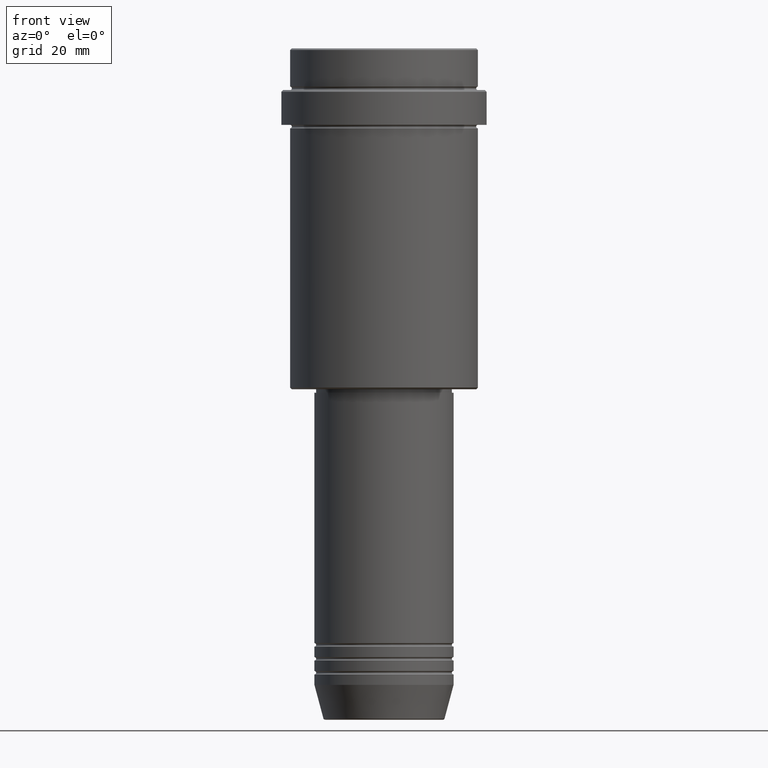
[diagram: clean part render]
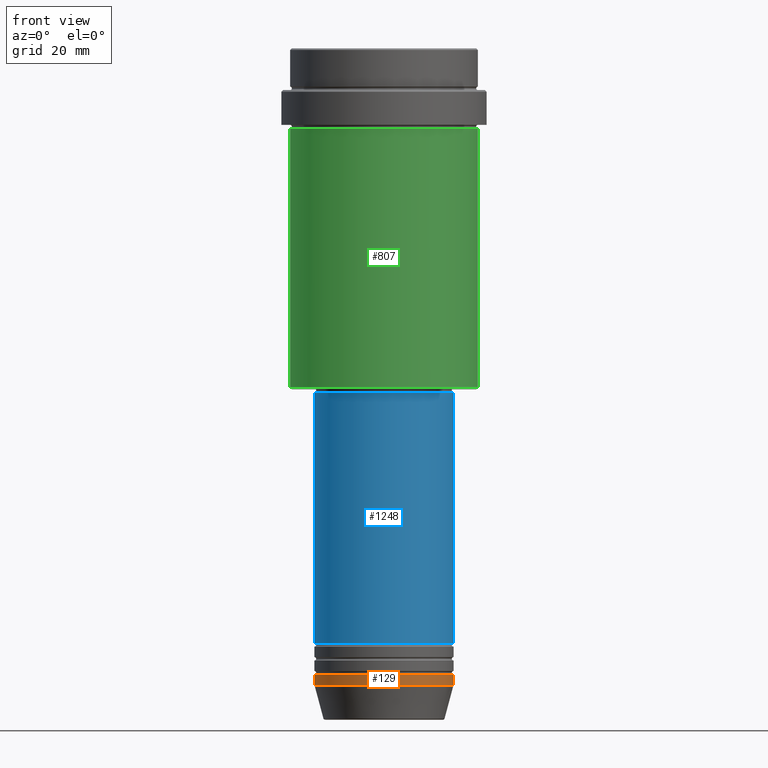
[diagram: same view with three faces highlighted in distinct colors, each labeled with its STEP entity id]
A machine part, front view with three faces highlighted in distinct colors.
Their STEP definitions:

[orange] entity #129 — the highlighted cylindrical surface (partial cylindrical patch) has radius 20 mm, axis along (-0, -0, 1).
#35 = DIRECTION ( 'NONE',  ( -0.000000000000000000, -0.000000000000000000, 1.000000000000000000 ) ) ;
#92 = EDGE_CURVE ( 'NONE', #513, #1364, #540, .T. ) ;
#102 = DIRECTION ( 'NONE',  ( 1.000000000000000000, 0.000000000000000000, 0.000000000000000000 ) ) ;
#129 = ADVANCED_FACE ( 'NONE', ( #1330 ), #902, .T. ) ;
#140 = CARTESIAN_POINT ( 'NONE',  ( 0.000000000000000000, 0.000000000000000000, 0.000000000000000000 ) ) ;
#206 = DIRECTION ( 'NONE',  ( -0.000000000000000000, -0.000000000000000000, 1.000000000000000000 ) ) ;
#254 = DIRECTION ( 'NONE',  ( 1.000000000000000000, 0.000000000000000000, 0.000000000000000000 ) ) ;
#282 = ORIENTED_EDGE ( 'NONE', *, *, #590, .F. ) ;
#301 = LINE ( 'NONE', #1396, #443 ) ;
#340 = CARTESIAN_POINT ( 'NONE',  ( 0.000000000000000000, 0.000000000000000000, -180.0000000000000000 ) ) ;
#399 = EDGE_CURVE ( 'NONE', #1364, #1377, #301, .T. ) ;
#443 = VECTOR ( 'NONE', #206, 1000.000000000000000 ) ;
#507 = CARTESIAN_POINT ( 'NONE',  ( -20.00000000000000000, 2.449293598294706513E-15, -180.0000000000000000 ) ) ;
#513 = VERTEX_POINT ( 'NONE', #1165 ) ;
#537 = DIRECTION ( 'NONE',  ( -0.000000000000000000, -0.000000000000000000, 1.000000000000000000 ) ) ;
#540 = CIRCLE ( 'NONE', #768, 20.00000000000000000 ) ;
#578 = ORIENTED_EDGE ( 'NONE', *, *, #92, .T. ) ;
#590 = EDGE_CURVE ( 'NONE', #1301, #1377, #1020, .T. ) ;
#637 = VECTOR ( 'NONE', #953, 1000.000000000000000 ) ;
#726 = AXIS2_PLACEMENT_3D ( 'NONE', #340, #35, #1011 ) ;
#768 = AXIS2_PLACEMENT_3D ( 'NONE', #1082, #537, #102 ) ;
#902 = CYLINDRICAL_SURFACE ( 'NONE', #1402, 20.00000000000000000 ) ;
#948 = LINE ( 'NONE', #1273, #637 ) ;
#953 = DIRECTION ( 'NONE',  ( -0.000000000000000000, -0.000000000000000000, 1.000000000000000000 ) ) ;
#1007 = DIRECTION ( 'NONE',  ( -0.000000000000000000, -0.000000000000000000, 1.000000000000000000 ) ) ;
#1011 = DIRECTION ( 'NONE',  ( 1.000000000000000000, 0.000000000000000000, 0.000000000000000000 ) ) ;
#1020 = CIRCLE ( 'NONE', #726, 20.00000000000000000 ) ;
#1082 = CARTESIAN_POINT ( 'NONE',  ( 0.000000000000000000, 0.000000000000000000, -183.0000000000000000 ) ) ;
#1095 = CARTESIAN_POINT ( 'NONE',  ( 20.00000000000000000, 0.000000000000000000, -180.0000000000000000 ) ) ;
#1157 = EDGE_LOOP ( 'NONE', ( #1344, #578, #1256, #282 ) ) ;
#1165 = CARTESIAN_POINT ( 'NONE',  ( -20.00000000000000000, 2.449293598294706513E-15, -183.0000000000000000 ) ) ;
#1256 = ORIENTED_EDGE ( 'NONE', *, *, #399, .T. ) ;
#1273 = CARTESIAN_POINT ( 'NONE',  ( -20.00000000000000000, 2.449293598294706513E-15, 0.000000000000000000 ) ) ;
#1301 = VERTEX_POINT ( 'NONE', #507 ) ;
#1302 = EDGE_CURVE ( 'NONE', #513, #1301, #948, .T. ) ;
#1330 = FACE_OUTER_BOUND ( 'NONE', #1157, .T. ) ;
#1344 = ORIENTED_EDGE ( 'NONE', *, *, #1302, .F. ) ;
#1364 = VERTEX_POINT ( 'NONE', #1398 ) ;
#1377 = VERTEX_POINT ( 'NONE', #1095 ) ;
#1396 = CARTESIAN_POINT ( 'NONE',  ( 20.00000000000000000, 0.000000000000000000, 0.000000000000000000 ) ) ;
#1398 = CARTESIAN_POINT ( 'NONE',  ( 20.00000000000000000, 0.000000000000000000, -183.0000000000000000 ) ) ;
#1402 = AXIS2_PLACEMENT_3D ( 'NONE', #140, #1007, #254 ) ;

[blue] entity #1248 — the highlighted cylindrical surface (partial cylindrical patch) has radius 20 mm, axis along (-0, -0, 1).
#38 = CARTESIAN_POINT ( 'NONE',  ( 0.000000000000000000, 0.000000000000000000, -170.9999999999999147 ) ) ;
#44 = CARTESIAN_POINT ( 'NONE',  ( -20.00000000000000000, 2.449293598294706513E-15, -170.9999999999999147 ) ) ;
#49 = DIRECTION ( 'NONE',  ( 1.000000000000000000, 0.000000000000000000, 0.000000000000000000 ) ) ;
#59 = CARTESIAN_POINT ( 'NONE',  ( 0.000000000000000000, 0.000000000000000000, -98.99999999999997158 ) ) ;
#65 = ORIENTED_EDGE ( 'NONE', *, *, #1179, .F. ) ;
#96 = VERTEX_POINT ( 'NONE', #960 ) ;
#104 = CIRCLE ( 'NONE', #913, 20.00000000000000000 ) ;
#114 = DIRECTION ( 'NONE',  ( -0.000000000000000000, -0.000000000000000000, 1.000000000000000000 ) ) ;
#166 = DIRECTION ( 'NONE',  ( 1.000000000000000000, 0.000000000000000000, 0.000000000000000000 ) ) ;
#193 = AXIS2_PLACEMENT_3D ( 'NONE', #394, #1285, #166 ) ;
#198 = EDGE_CURVE ( 'NONE', #96, #781, #1012, .T. ) ;
#237 = ORIENTED_EDGE ( 'NONE', *, *, #198, .T. ) ;
#305 = FACE_OUTER_BOUND ( 'NONE', #612, .T. ) ;
#352 = CARTESIAN_POINT ( 'NONE',  ( 20.00000000000000000, 0.000000000000000000, 0.000000000000000000 ) ) ;
#370 = CARTESIAN_POINT ( 'NONE',  ( 20.00000000000000000, 0.000000000000000000, -98.99999999999997158 ) ) ;
#394 = CARTESIAN_POINT ( 'NONE',  ( 0.000000000000000000, 0.000000000000000000, 0.000000000000000000 ) ) ;
#456 = ORIENTED_EDGE ( 'NONE', *, *, #508, .F. ) ;
#508 = EDGE_CURVE ( 'NONE', #1015, #1327, #1080, .T. ) ;
#531 = CARTESIAN_POINT ( 'NONE',  ( -20.00000000000000000, 2.449293598294706513E-15, -98.99999999999997158 ) ) ;
#589 = DIRECTION ( 'NONE',  ( 1.000000000000000000, 0.000000000000000000, 0.000000000000000000 ) ) ;
#612 = EDGE_LOOP ( 'NONE', ( #456, #871, #237, #65 ) ) ;
#702 = CIRCLE ( 'NONE', #888, 20.00000000000000000 ) ;
#781 = VERTEX_POINT ( 'NONE', #370 ) ;
#858 = VECTOR ( 'NONE', #114, 1000.000000000000000 ) ;
#871 = ORIENTED_EDGE ( 'NONE', *, *, #1133, .T. ) ;
#888 = AXIS2_PLACEMENT_3D ( 'NONE', #59, #1143, #49 ) ;
#913 = AXIS2_PLACEMENT_3D ( 'NONE', #38, #1225, #589 ) ;
#960 = CARTESIAN_POINT ( 'NONE',  ( 20.00000000000000000, 0.000000000000000000, -170.9999999999999147 ) ) ;
#961 = CYLINDRICAL_SURFACE ( 'NONE', #193, 20.00000000000000000 ) ;
#1012 = LINE ( 'NONE', #352, #858 ) ;
#1015 = VERTEX_POINT ( 'NONE', #44 ) ;
#1061 = DIRECTION ( 'NONE',  ( -0.000000000000000000, -0.000000000000000000, 1.000000000000000000 ) ) ;
#1076 = CARTESIAN_POINT ( 'NONE',  ( -20.00000000000000000, 2.449293598294706513E-15, 0.000000000000000000 ) ) ;
#1080 = LINE ( 'NONE', #1076, #1382 ) ;
#1133 = EDGE_CURVE ( 'NONE', #1015, #96, #104, .T. ) ;
#1143 = DIRECTION ( 'NONE',  ( -0.000000000000000000, -0.000000000000000000, 1.000000000000000000 ) ) ;
#1179 = EDGE_CURVE ( 'NONE', #1327, #781, #702, .T. ) ;
#1225 = DIRECTION ( 'NONE',  ( -0.000000000000000000, -0.000000000000000000, 1.000000000000000000 ) ) ;
#1248 = ADVANCED_FACE ( 'NONE', ( #305 ), #961, .T. ) ;
#1285 = DIRECTION ( 'NONE',  ( -0.000000000000000000, -0.000000000000000000, 1.000000000000000000 ) ) ;
#1327 = VERTEX_POINT ( 'NONE', #531 ) ;
#1382 = VECTOR ( 'NONE', #1061, 1000.000000000000000 ) ;

[green] entity #807 — the highlighted cylindrical surface (partial cylindrical patch) has radius 27 mm, axis along (-0, -0, 1).
#13 = AXIS2_PLACEMENT_3D ( 'NONE', #1298, #1010, #1031 ) ;
#57 = EDGE_CURVE ( 'NONE', #176, #1096, #744, .T. ) ;
#124 = CIRCLE ( 'NONE', #13, 27.00000000000000355 ) ;
#169 = CYLINDRICAL_SURFACE ( 'NONE', #912, 27.00000000000000355 ) ;
#176 = VERTEX_POINT ( 'NONE', #808 ) ;
#204 = LINE ( 'NONE', #406, #311 ) ;
#220 = CARTESIAN_POINT ( 'NONE',  ( -27.00000000000000355, 3.306546357697854128E-15, -23.00000000000001421 ) ) ;
#291 = EDGE_LOOP ( 'NONE', ( #1142, #713, #353, #769 ) ) ;
#300 = CARTESIAN_POINT ( 'NONE',  ( -27.00000000000000355, 3.306546357697854128E-15, 0.000000000000000000 ) ) ;
#311 = VECTOR ( 'NONE', #648, 1000.000000000000000 ) ;
#317 = LINE ( 'NONE', #300, #544 ) ;
#353 = ORIENTED_EDGE ( 'NONE', *, *, #873, .T. ) ;
#406 = CARTESIAN_POINT ( 'NONE',  ( 27.00000000000000355, 0.000000000000000000, 0.000000000000000000 ) ) ;
#439 = DIRECTION ( 'NONE',  ( -0.000000000000000000, -0.000000000000000000, 1.000000000000000000 ) ) ;
#544 = VECTOR ( 'NONE', #736, 1000.000000000000000 ) ;
#648 = DIRECTION ( 'NONE',  ( -0.000000000000000000, -0.000000000000000000, 1.000000000000000000 ) ) ;
#653 = CARTESIAN_POINT ( 'NONE',  ( 27.00000000000000355, 0.000000000000000000, -23.00000000000001421 ) ) ;
#692 = CARTESIAN_POINT ( 'NONE',  ( 27.00000000000000355, 0.000000000000000000, -97.49999999999997158 ) ) ;
#696 = VERTEX_POINT ( 'NONE', #220 ) ;
#708 = DIRECTION ( 'NONE',  ( -0.000000000000000000, -0.000000000000000000, 1.000000000000000000 ) ) ;
#713 = ORIENTED_EDGE ( 'NONE', *, *, #57, .T. ) ;
#736 = DIRECTION ( 'NONE',  ( -0.000000000000000000, -0.000000000000000000, 1.000000000000000000 ) ) ;
#744 = CIRCLE ( 'NONE', #770, 27.00000000000000355 ) ;
#769 = ORIENTED_EDGE ( 'NONE', *, *, #1006, .F. ) ;
#770 = AXIS2_PLACEMENT_3D ( 'NONE', #853, #439, #883 ) ;
#807 = ADVANCED_FACE ( 'NONE', ( #1124 ), #169, .T. ) ;
#808 = CARTESIAN_POINT ( 'NONE',  ( -27.00000000000000355, 3.306546357697854128E-15, -97.49999999999997158 ) ) ;
#853 = CARTESIAN_POINT ( 'NONE',  ( 0.000000000000000000, 0.000000000000000000, -97.49999999999997158 ) ) ;
#873 = EDGE_CURVE ( 'NONE', #1096, #1388, #204, .T. ) ;
#883 = DIRECTION ( 'NONE',  ( -1.000000000000000000, 0.000000000000000000, 0.000000000000000000 ) ) ;
#904 = EDGE_CURVE ( 'NONE', #176, #696, #317, .T. ) ;
#912 = AXIS2_PLACEMENT_3D ( 'NONE', #1244, #708, #925 ) ;
#925 = DIRECTION ( 'NONE',  ( 1.000000000000000000, 0.000000000000000000, 0.000000000000000000 ) ) ;
#1006 = EDGE_CURVE ( 'NONE', #696, #1388, #124, .T. ) ;
#1010 = DIRECTION ( 'NONE',  ( -0.000000000000000000, -0.000000000000000000, 1.000000000000000000 ) ) ;
#1031 = DIRECTION ( 'NONE',  ( 1.000000000000000000, 0.000000000000000000, 0.000000000000000000 ) ) ;
#1096 = VERTEX_POINT ( 'NONE', #692 ) ;
#1124 = FACE_OUTER_BOUND ( 'NONE', #291, .T. ) ;
#1142 = ORIENTED_EDGE ( 'NONE', *, *, #904, .F. ) ;
#1244 = CARTESIAN_POINT ( 'NONE',  ( 0.000000000000000000, 0.000000000000000000, 0.000000000000000000 ) ) ;
#1298 = CARTESIAN_POINT ( 'NONE',  ( 0.000000000000000000, 0.000000000000000000, -23.00000000000001421 ) ) ;
#1388 = VERTEX_POINT ( 'NONE', #653 ) ;